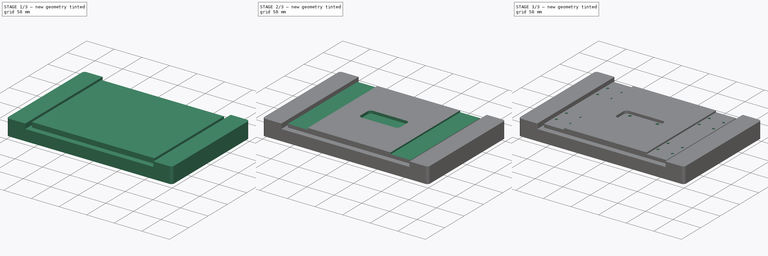
[diagram: build sequence overview — one tinted view per stage of 3, left to right]
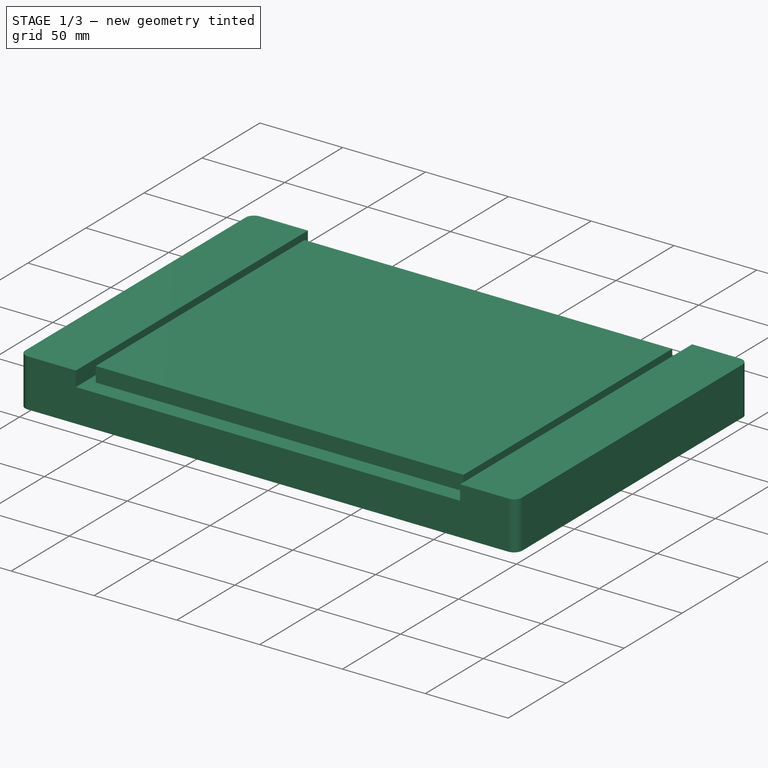
[diagram: stage 1 of 3 — iso view after this stage's code; geometry added in this stage tinted green]
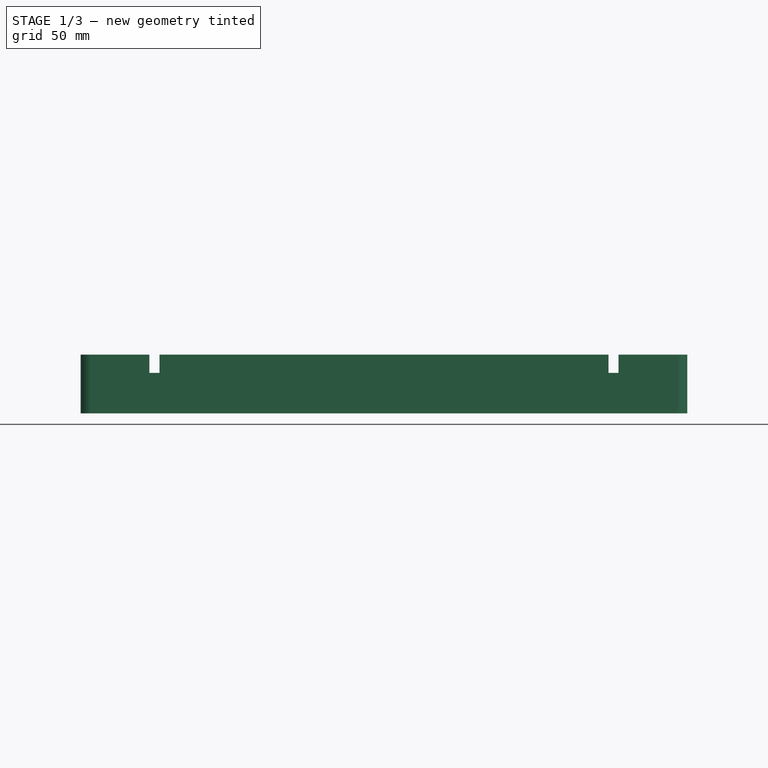
[diagram: stage 1 of 3 — front view after this stage's code; geometry added in this stage tinted green]
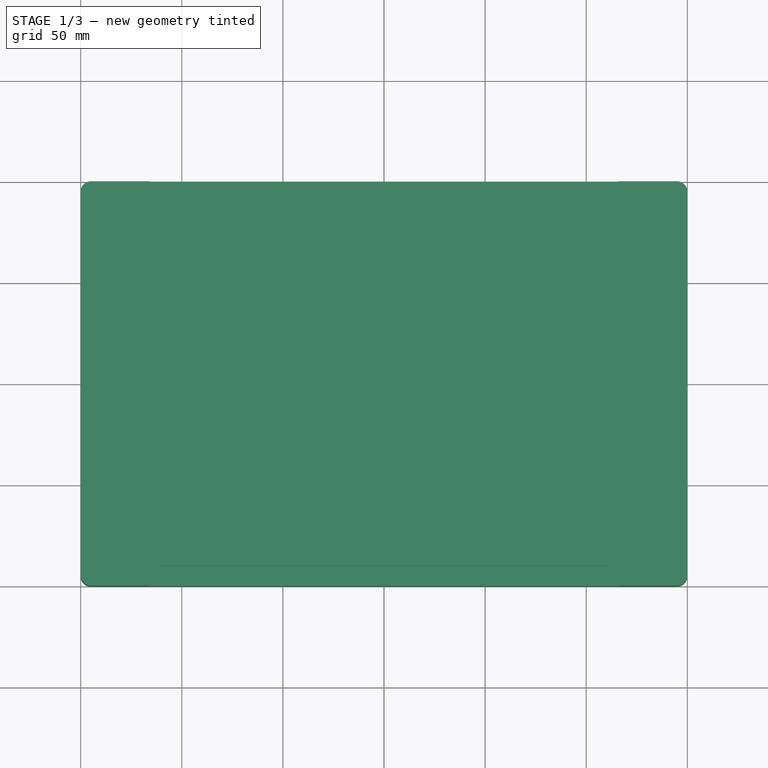
[diagram: stage 1 of 3 — top view after this stage's code; geometry added in this stage tinted green]
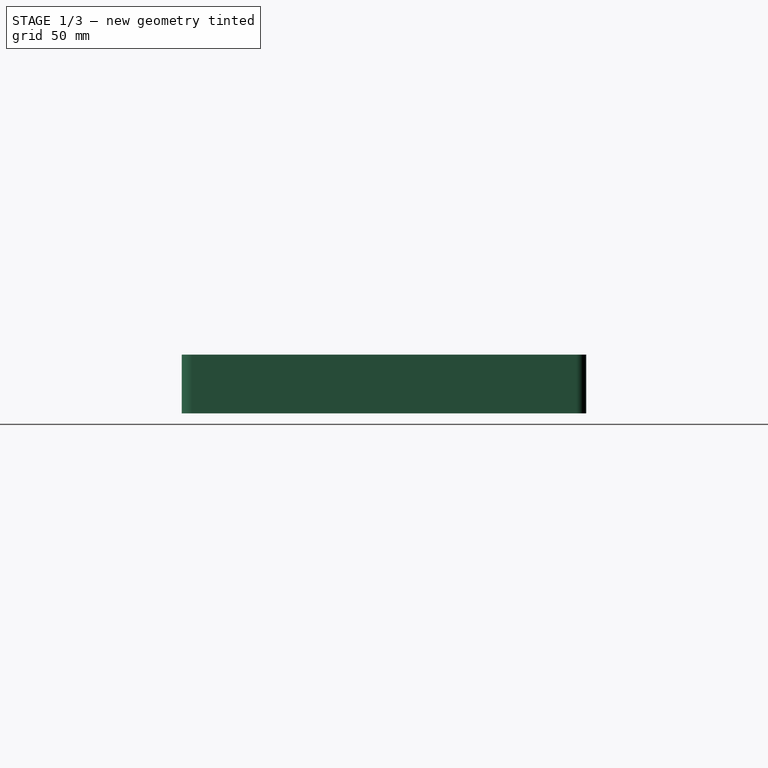
[diagram: stage 1 of 3 — right view after this stage's code; geometry added in this stage tinted green]
FCSTD DOCUMENT  (FreeCAD 0.20R30972 (Git))
Label: Стол
License: All rights reserved
LicenseURL: http://en.wikipedia.org/wiki/All_rights_reserved
objects: Sketcher::SketchObject×7, PartDesign::Pocket×3, PartDesign::Pad×2, PartDesign::Hole×2, Part::Feature×1, PartDesign::Fillet×1, PartDesign::Body×1
note: 33 computed .brp shape members not serialized (recipe doc carries the construction recipe); baked Part::Feature solids carry a one-line shape summary decoded from their .brp
EXTERNAL_REF file=../Станина/ТаблицаПараметров.FCStd obj=Spreadsheet010

FEATURE [Part::Feature] Solid  label="стол"
  Placement = pos=(-150,-100,0) rot=(0,0,1;0rad)
  TreeRank = 158
  shape: bbox 300 x 200 x 29 mm, 426 faces (baked)
FEATURE [Sketcher::SketchObject] Sketch
  FullyConstrained = true
  MapMode = 5
  Support = -> [XY_Plane]
  TreeRank = 169
  expr: Constraints[5] = <<ТаблицаПараметров>>#<<Стол>>.StolDovjuna
  expr: Constraints[6] = <<ТаблицаПараметров>>#<<Стол>>.StolShirina
  sketch-geometry (12):
    g0: LineSegment StartX=-145 StartY=100 StartZ=0 EndX=145 EndY=100 EndZ=0
    g1: LineSegment StartX=150 StartY=95 StartZ=0 EndX=150 EndY=-95 EndZ=0
    g2: LineSegment StartX=145 StartY=-100 StartZ=0 EndX=-145 EndY=-100 EndZ=0
    g3: LineSegment StartX=-150 StartY=-95 StartZ=0 EndX=-150 EndY=95 EndZ=0
    g4: ArcOfCircle CenterX=-145 CenterY=95 CenterZ=0 NormalX=0 NormalY=0 NormalZ=1 AngleXU=0 Radius=5 StartAngle=1.5708 EndAngle=3.14159
    g5: GeomPoint [constr] X=-150 Y=100 Z=0
    g6: ArcOfCircle CenterX=-145 CenterY=-95 CenterZ=0 NormalX=0 NormalY=0 NormalZ=1 AngleXU=0 Radius=5 StartAngle=3.14159 EndAngle=4.71239
    g7: GeomPoint [constr] X=-150 Y=-100 Z=0
    g8: ArcOfCircle CenterX=145 CenterY=-95 CenterZ=0 NormalX=0 NormalY=0 NormalZ=1 AngleXU=0 Radius=5 StartAngle=4.71239 EndAngle=6.28319
    g9: GeomPoint [constr] X=150 Y=-100 Z=0
    g10: ArcOfCircle CenterX=145 CenterY=95 CenterZ=0 NormalX=0 NormalY=0 NormalZ=1 AngleXU=0 Radius=5 StartAngle=9e-16 EndAngle=1.5708
    g11: GeomPoint [constr] X=150 Y=100 Z=0
  constraints (27):
    c: Horizontal(g0)
    c: Horizontal(g2)
    c: Vertical(g1)
    c: Vertical(g3)
    c: Symmetric(g5,g9,g-1)
    c: DistanceY(g7,g5) = 200
    c: DistanceX(g5,g11) = 300
    c: PointOnObject(g5,g3)
    c: PointOnObject(g5,g0)
    c: Tangent(g3,g4) = 1.5708
    c: Tangent(g0,g4) = 1.5708
    c: PointOnObject(g7,g3)
    c: PointOnObject(g7,g2)
    c: Tangent(g3,g6) = 1.5708
    c: Tangent(g2,g6) = 1.5708
    c: PointOnObject(g9,g2)
    c: PointOnObject(g9,g1)
    c: Tangent(g2,g8) = 1.5708
    c: Tangent(g1,g8) = 1.5708
    c: PointOnObject(g11,g0)
    c: PointOnObject(g11,g1)
    c: Tangent(g0,g10) = 1.5708
    c: Tangent(g1,g10) = 1.5708
    c: Equal(g4,g6)
    c: Equal(g4,g8)
    c: Equal(g4,g10)
    c: Radius(g4) = 5
FEATURE [PartDesign::Pad] Pad
  AddSubType = 0
  AlongSketchNormal = false
  CheckUpToFaceLimits = true
  ClaimChildren = false
  Direction = (0,0,1)
  Fit = 0
  FitJoin = 0
  InnerFit = 0
  InnerFitJoin = 0
  InnerTaperAngle = 0
  InnerTaperAngleRev = 0
  Length = 29
  Length2 = 100
  Linearize = true
  NewSolid = false
  Profile = -> Sketch
  Suppress = false
  TreeRank = 170
  Type = 0
  _ProfileBasedVersion = 1
  expr: Length = <<ТаблицаПараметров>>#<<Стол>>.StolVusota
FEATURE [Sketcher::SketchObject] Sketch001
  FullyConstrained = true
  MapMode = 5
  Placement = pos=(0,0,29) rot=(0,0,1;0rad)
  Support = -> [Pad]
  TreeRank = 171
  expr: Constraints[10] = <<ТаблицаПараметров>>#<<Стол>>.StolPazShuruna
  expr: Constraints[9] = <<ТаблицаПараметров>>#<<Стол>>.StolDovjuna
  sketch-geometry (4):
    g0: LineSegment StartX=-116 StartY=100 StartZ=0 EndX=116 EndY=100 EndZ=0
    g1: LineSegment StartX=116 StartY=100 StartZ=0 EndX=116 EndY=-100 EndZ=0
    g2: LineSegment StartX=116 StartY=-100 StartZ=0 EndX=-116 EndY=-100 EndZ=0
    g3: LineSegment StartX=-116 StartY=-100 StartZ=0 EndX=-116 EndY=100 EndZ=0
  constraints (11):
    c: Coincident(g0,g1)
    c: Coincident(g1,g2)
    c: Coincident(g2,g3)
    c: Coincident(g3,g0)
    c: Horizontal(g0)
    c: Horizontal(g2)
    c: Vertical(g1)
    c: Vertical(g3)
    c: Symmetric(g1,g0,g-1)
    c: DistanceY(g3,g3) = 200
    c: DistanceX(g0,g0) = 232
FEATURE [PartDesign::Pocket] Pocket
  AddSubType = 1
  BaseFeature = -> Pad
  CheckUpToFaceLimits = true
  ClaimChildren = false
  Fit = 0
  FitJoin = 0
  InnerFit = 0
  InnerFitJoin = 0
  InnerTaperAngle = 0
  InnerTaperAngleRev = 0
  Length = 9
  Length2 = 100
  Linearize = true
  NewSolid = false
  Profile = -> Sketch001
  Suppress = false
  TreeRank = 172
  Type = 0
  _ProfileBasedVersion = 1
  _Version = 1
  expr: Length = <<ТаблицаПараметров>>#<<Стол>>.StolPazZahust
FEATURE [Sketcher::SketchObject] Sketch002
  FullyConstrained = true
  MapMode = 5
  Placement = pos=(0,0,20) rot=(0,0,1;0rad)
  Support = -> [Pocket]
  TreeRank = 173
  expr: Constraints[10] = <<ТаблицаПараметров>>#<<Стол>>.StolKaretkaDovjuna
  expr: Constraints[9] = <<ТаблицаПараметров>>#<<Стол>>.StolKaretkuShurina
  sketch-geometry (4):
    g0: LineSegment StartX=-111 StartY=90 StartZ=0 EndX=111 EndY=90 EndZ=0
    g1: LineSegment StartX=111 StartY=90 StartZ=0 EndX=111 EndY=-90 EndZ=0
    g2: LineSegment StartX=111 StartY=-90 StartZ=0 EndX=-111 EndY=-90 EndZ=0
    g3: LineSegment StartX=-111 StartY=-90 StartZ=0 EndX=-111 EndY=90 EndZ=0
  constraints (11):
    c: Coincident(g0,g1)
    c: Coincident(g1,g2)
    c: Coincident(g2,g3)
    c: Coincident(g3,g0)
    c: Horizontal(g0)
    c: Horizontal(g2)
    c: Vertical(g1)
    c: Vertical(g3)
    c: Symmetric(g0,g1,g-1)
    c: DistanceX(g0,g0) = 222
    c: DistanceY(g3,g3) = 180
FEATURE [PartDesign::Pad] Pad001
  AddSubType = 0
  AlongSketchNormal = false
  BaseFeature = -> Pocket
  CheckUpToFaceLimits = true
  ClaimChildren = false
  Direction = (0,0,1)
  Fit = 0
  FitJoin = 0
  InnerFit = 0
  InnerFitJoin = 0
  InnerTaperAngle = 0
  InnerTaperAngleRev = 0
  Length = 9
  Length2 = 100
  Linearize = true
  NewSolid = false
  Profile = -> Sketch002
  Suppress = false
  TreeRank = 174
  Type = 0
  _ProfileBasedVersion = 1
  expr: Length = <<ТаблицаПараметров>>#<<Стол>>.StolPazZahust
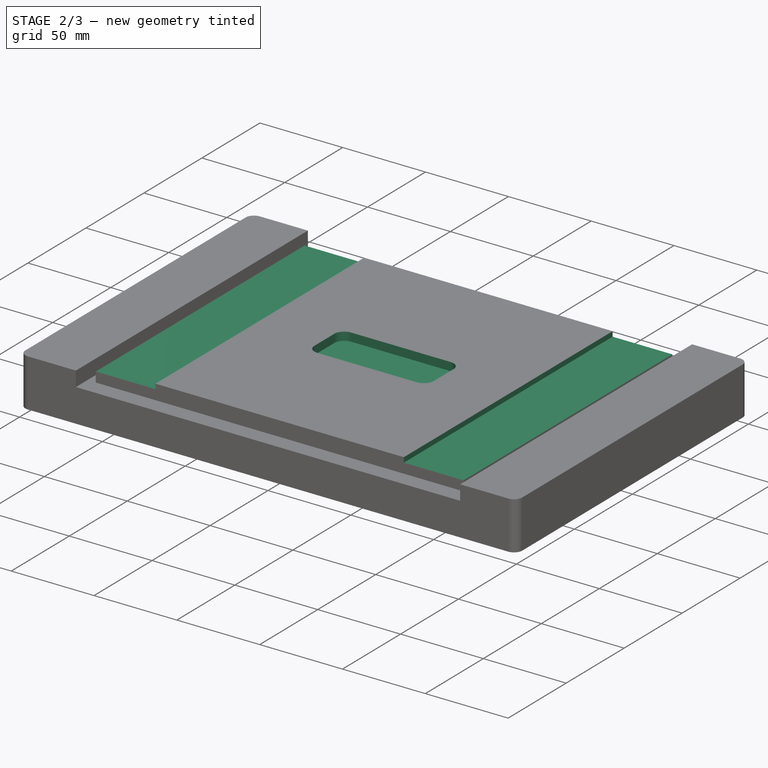
[diagram: stage 2 of 3 — iso view after this stage's code; geometry added in this stage tinted green]
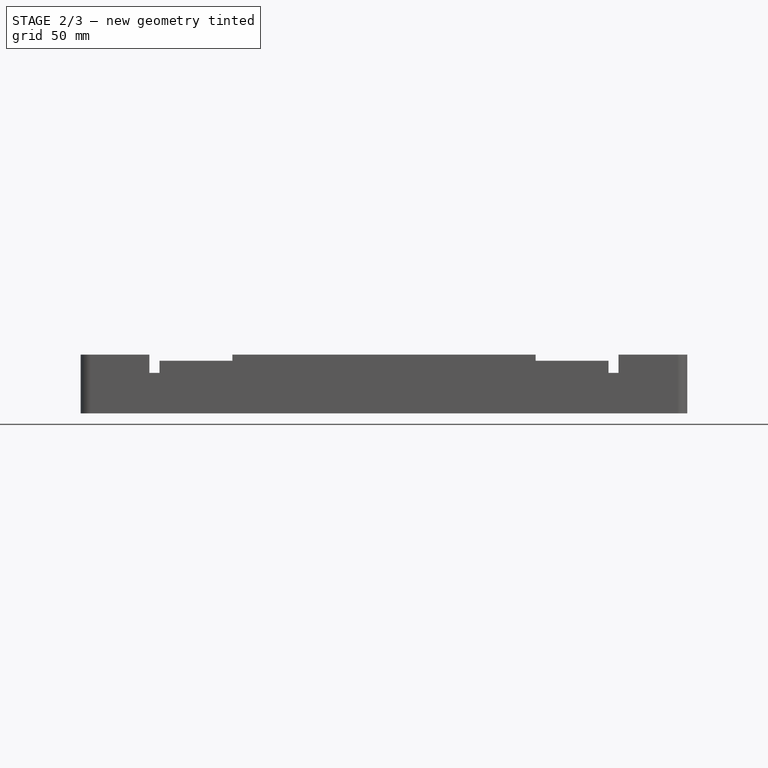
[diagram: stage 2 of 3 — front view after this stage's code; geometry added in this stage tinted green]
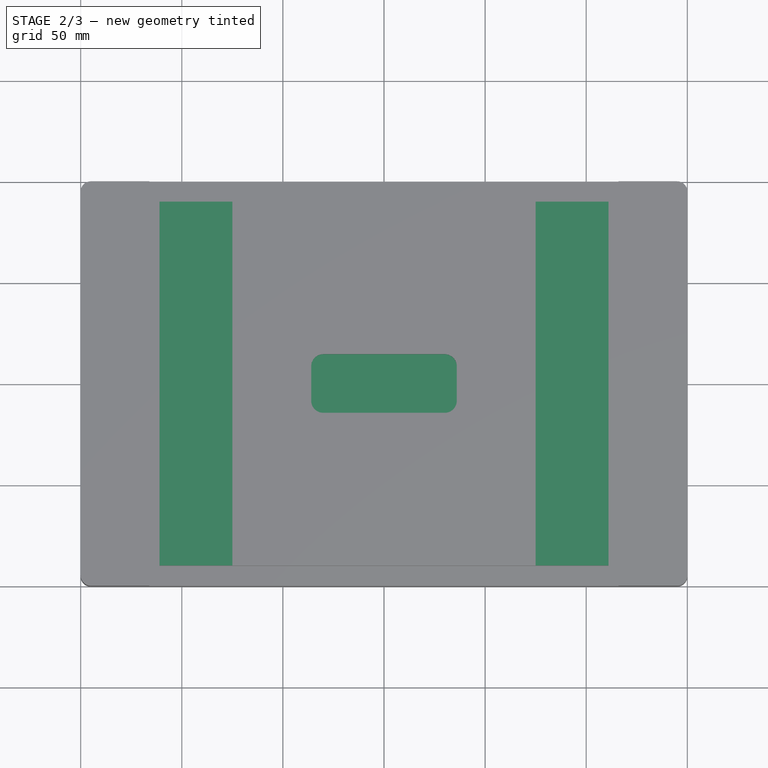
[diagram: stage 2 of 3 — top view after this stage's code; geometry added in this stage tinted green]
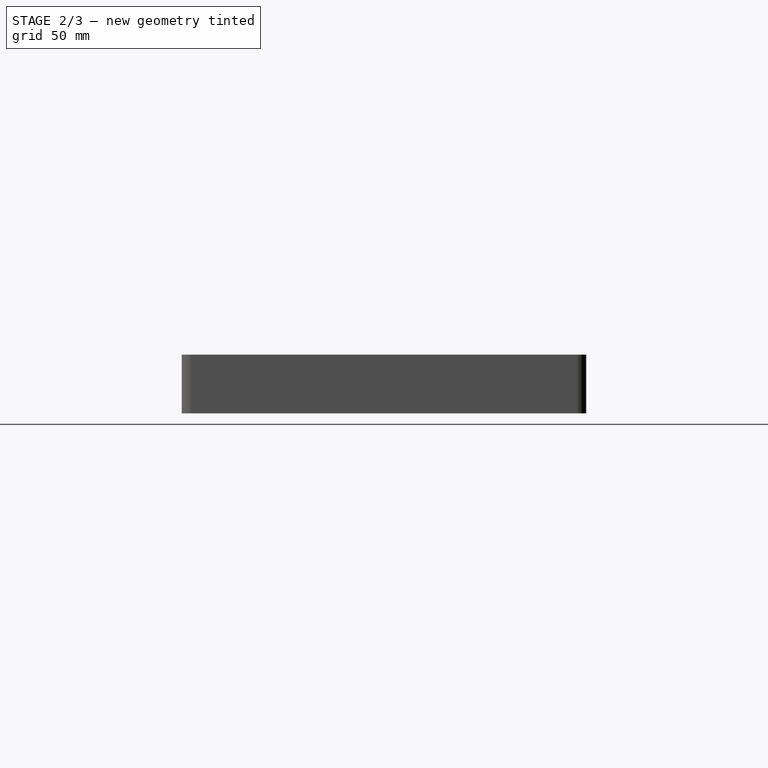
[diagram: stage 2 of 3 — right view after this stage's code; geometry added in this stage tinted green]
FEATURE [Sketcher::SketchObject] Sketch003
  FullyConstrained = true
  MapMode = 5
  Placement = pos=(0,0,29) rot=(0,0,1;0rad)
  Support = -> [Pad001]
  TreeRank = 175
  expr: Constraints[18] = <<ТаблицаПараметров>>#<<Стол>>.StolKaretkaDovjuna
  expr: Constraints[19] = <<ТаблицаПараметров>>#<<Стол>>.StolKaretkuShurina
  expr: Constraints[20] = <<ТаблицаПараметров>>#<<Стол>>.KaretkaShirina
  sketch-geometry (8):
    g0: LineSegment StartX=-111 StartY=-90 StartZ=0 EndX=-75 EndY=-90 EndZ=0
    g1: LineSegment StartX=-75 StartY=-90 StartZ=0 EndX=-75 EndY=90 EndZ=0
    g2: LineSegment StartX=-75 StartY=90 StartZ=0 EndX=-111 EndY=90 EndZ=0
    g3: LineSegment StartX=-111 StartY=90 StartZ=0 EndX=-111 EndY=-90 EndZ=0
    g4: LineSegment StartX=111 StartY=-90 StartZ=0 EndX=75 EndY=-90 EndZ=0
    g5: LineSegment StartX=75 StartY=-90 StartZ=0 EndX=75 EndY=90 EndZ=0
    g6: LineSegment StartX=75 StartY=90 StartZ=0 EndX=111 EndY=90 EndZ=0
    g7: LineSegment StartX=111 StartY=90 StartZ=0 EndX=111 EndY=-90 EndZ=0
  constraints (23):
    c: Coincident(g0,g1)
    c: Coincident(g1,g2)
    c: Coincident(g2,g3)
    c: Coincident(g3,g0)
    c: Horizontal(g0)
    c: Horizontal(g2)
    c: Vertical(g1)
    c: Vertical(g3)
    c: Coincident(g4,g5)
    c: Coincident(g5,g6)
    c: Coincident(g6,g7)
    c: Coincident(g7,g4)
    c: Horizontal(g4)
    c: Horizontal(g6)
    c: Vertical(g5)
    c: Vertical(g7)
    c: Symmetric(g6,g0,g-1)
    c: Equal(g2,g6)
    c: DistanceY(g3,g3) = 180
    c: DistanceX(g2,g6) = 222
    c: DistanceX(g6,g6) = 36
    c: Equal(g7,g3)
    c: Horizontal(g2,g6)
FEATURE [PartDesign::Pocket] Pocket001
  AddSubType = 1
  BaseFeature = -> Pad001
  CheckUpToFaceLimits = true
  ClaimChildren = false
  Fit = 0
  FitJoin = 0
  InnerFit = 0
  InnerFitJoin = 0
  InnerTaperAngle = 0
  InnerTaperAngleRev = 0
  Length = 3
  Length2 = 100
  Linearize = true
  NewSolid = false
  Profile = -> Sketch003
  Suppress = false
  TreeRank = 176
  Type = 0
  _ProfileBasedVersion = 1
  _Version = 1
  expr: Length = <<ТаблицаПараметров>>#<<Стол>>.KaretkaPaz
FEATURE [Sketcher::SketchObject] Sketch004
  FullyConstrained = true
  MapMode = 5
  Placement = pos=(0,0,29) rot=(0,0,1;0rad)
  Support = -> [Pocket001]
  TreeRank = 177
  expr: Constraints[5] = <<ТаблицаПараметров>>#<<Стол>>.OporaShiruna
  expr: Constraints[6] = <<ТаблицаПараметров>>#<<Стол>>.OporaDovjuna
  sketch-geometry (12):
    g0: LineSegment StartX=-30 StartY=14.5 StartZ=0 EndX=30 EndY=14.5 EndZ=0
    g1: LineSegment StartX=36 StartY=8.5 StartZ=0 EndX=36 EndY=-8.5 EndZ=0
    g2: LineSegment StartX=30 StartY=-14.5 StartZ=0 EndX=-30 EndY=-14.5 EndZ=0
    g3: LineSegment StartX=-36 StartY=-8.5 StartZ=0 EndX=-36 EndY=8.5 EndZ=0
    g4: ArcOfCircle CenterX=-30 CenterY=8.5 CenterZ=0 NormalX=0 NormalY=0 NormalZ=1 AngleXU=0 Radius=6 StartAngle=1.5708 EndAngle=3.14159
    g5: GeomPoint [constr] X=-36 Y=14.5 Z=0
    g6: ArcOfCircle CenterX=-30 CenterY=-8.5 CenterZ=0 NormalX=0 NormalY=0 NormalZ=1 AngleXU=0 Radius=6 StartAngle=3.14159 EndAngle=4.71239
    g7: GeomPoint [constr] X=-36 Y=-14.5 Z=0
    g8: ArcOfCircle CenterX=30 CenterY=-8.5 CenterZ=0 NormalX=0 NormalY=0 NormalZ=1 AngleXU=0 Radius=6 StartAngle=4.71239 EndAngle=6.28319
    g9: GeomPoint [constr] X=36 Y=-14.5 Z=0
    g10: ArcOfCircle CenterX=30 CenterY=8.5 CenterZ=0 NormalX=0 NormalY=0 NormalZ=1 AngleXU=0 Radius=6 StartAngle=0 EndAngle=1.5708
    g11: GeomPoint [constr] X=36 Y=14.5 Z=0
  constraints (27):
    c: Horizontal(g0)
    c: Horizontal(g2)
    c: Vertical(g1)
    c: Vertical(g3)
    c: Symmetric(g11,g7,g-1)
    c: DistanceX(g5,g11) = 72
    c: DistanceY(g7,g5) = 29
    c: PointOnObject(g5,g3)
    c: PointOnObject(g5,g0)
    c: Tangent(g3,g4) = 1.5708
    c: Tangent(g0,g4) = 1.5708
    c: PointOnObject(g7,g3)
    c: PointOnObject(g7,g2)
    c: Tangent(g3,g6) = 1.5708
    c: Tangent(g2,g6) = 1.5708
    c: PointOnObject(g9,g2)
    c: PointOnObject(g9,g1)
    c: Tangent(g2,g8) = 1.5708
    c: Tangent(g1,g8) = 1.5708
    c: PointOnObject(g11,g0)
    c: PointOnObject(g11,g1)
    c: Tangent(g0,g10) = 1.5708
    c: Tangent(g1,g10) = 1.5708
    c: Equal(g4,g6)
    c: Equal(g4,g8)
    c: Equal(g4,g10)
    c: Radius(g4) = 6
FEATURE [PartDesign::Pocket] Pocket002
  AddSubType = 1
  BaseFeature = -> Pocket001
  CheckUpToFaceLimits = true
  ClaimChildren = false
  Fit = 0
  FitJoin = 0
  InnerFit = 0
  InnerFitJoin = 0
  InnerTaperAngle = 0
  InnerTaperAngleRev = 0
  Length = 5
  Length2 = 100
  Linearize = true
  NewSolid = false
  Profile = -> Sketch004
  Suppress = false
  TreeRank = 178
  Type = 0
  _ProfileBasedVersion = 1
  _Version = 1
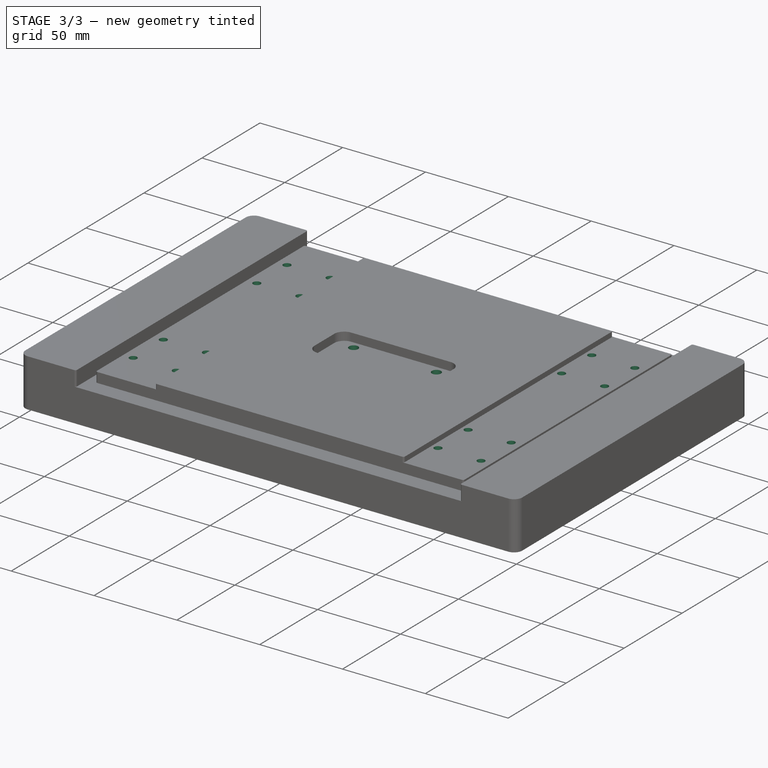
[diagram: stage 3 of 3 — iso view after this stage's code; geometry added in this stage tinted green]
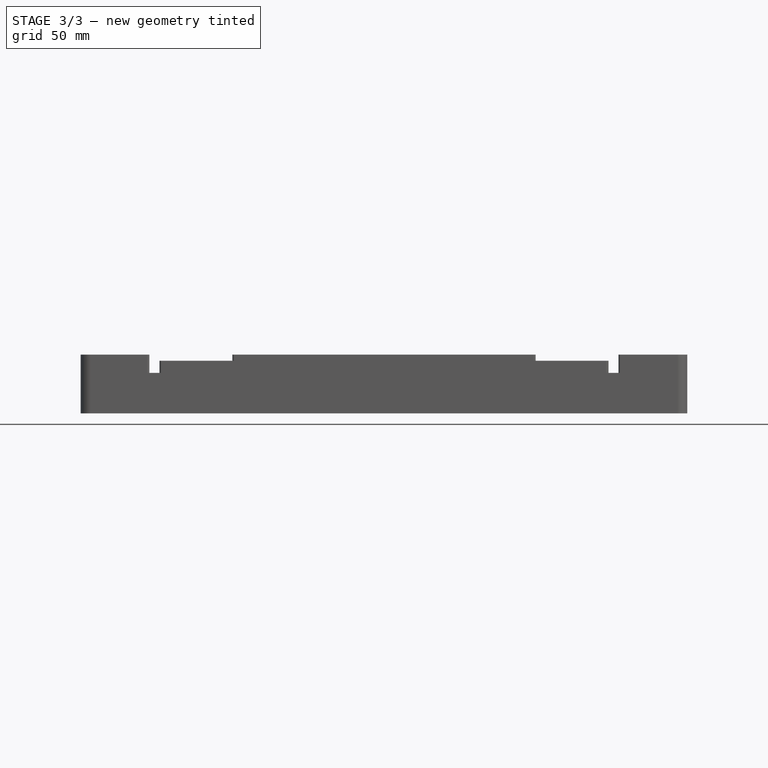
[diagram: stage 3 of 3 — front view after this stage's code; geometry added in this stage tinted green]
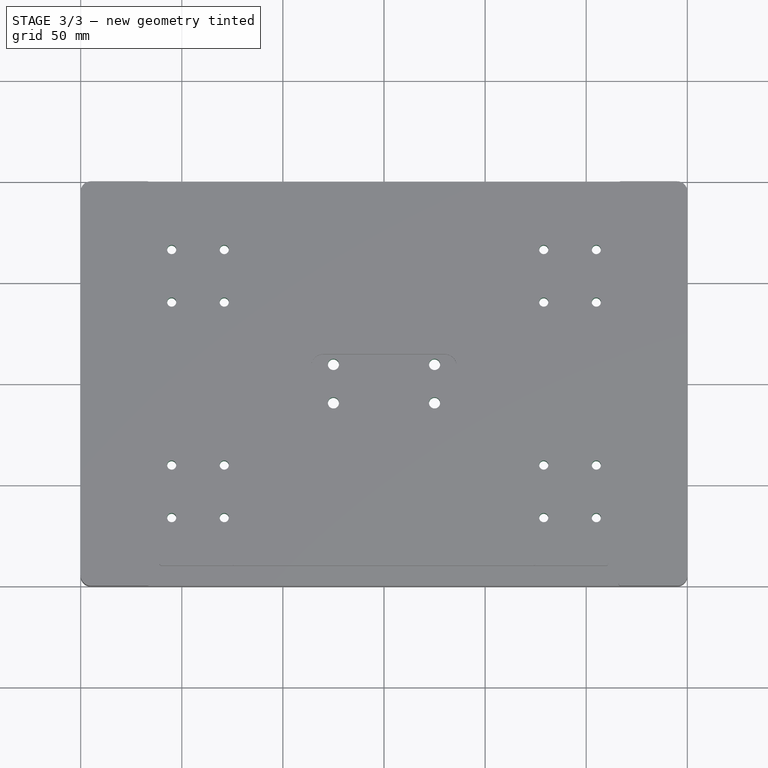
[diagram: stage 3 of 3 — top view after this stage's code; geometry added in this stage tinted green]
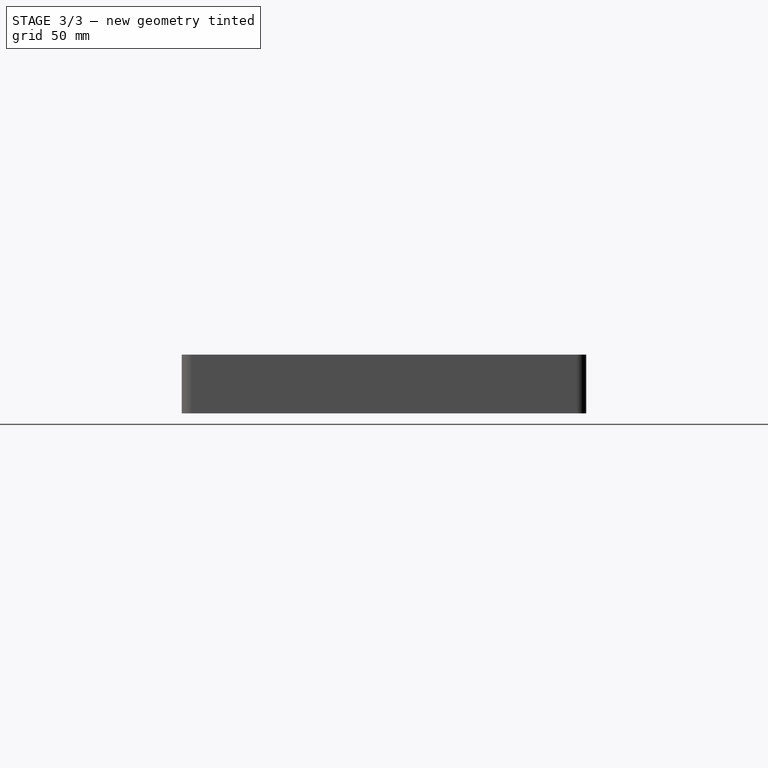
[diagram: stage 3 of 3 — right view after this stage's code; geometry added in this stage tinted green]
FEATURE [PartDesign::Fillet] Fillet
  AddSubType = 0
  Base = -> Pocket002 [Edge28,Edge41,Edge55,Edge53,Edge51,Edge26,Edge47,Edge49,Edge21,Edge43,Edge19,Edge45]
  BaseFeature = -> Pocket002
  NewSolid = false
  Radius = 1
  SupportTransform = false
  Suppress = false
  TreeRank = 179
FEATURE [Sketcher::SketchObject] Sketch005
  FullyConstrained = true
  MapMode = 5
  Placement = pos=(0,0,0) rot=(1,0,0;3.14159rad)
  Support = -> [Fillet]
  TreeRank = 180
  expr: Constraints[9] = -(<<ТаблицаПараметров>>#<<Стол>>.StolKaretkuShurina / 2 - 36 + 4)
  sketch-geometry (16):
    g0: Circle CenterX=-105 CenterY=66.3 CenterZ=0 NormalX=0 NormalY=0 NormalZ=1 AngleXU=0 Radius=1
    g1: Circle CenterX=-79 CenterY=66.3 CenterZ=0 NormalX=0 NormalY=0 NormalZ=1 AngleXU=0 Radius=1
    g2: Circle CenterX=-105 CenterY=40.3 CenterZ=0 NormalX=0 NormalY=0 NormalZ=1 AngleXU=0 Radius=1
    g3: Circle CenterX=-79 CenterY=40.3 CenterZ=0 NormalX=0 NormalY=0 NormalZ=1 AngleXU=0 Radius=1
    g4: Circle CenterX=-105 CenterY=-40.3 CenterZ=0 NormalX=0 NormalY=0 NormalZ=1 AngleXU=0 Radius=1
    g5: Circle CenterX=-79 CenterY=-40.3 CenterZ=0 NormalX=0 NormalY=0 NormalZ=1 AngleXU=0 Radius=1
    g6: Circle CenterX=-105 CenterY=-66.3 CenterZ=0 NormalX=0 NormalY=0 NormalZ=1 AngleXU=0 Radius=1
    g7: Circle CenterX=-79 CenterY=-66.3 CenterZ=0 NormalX=0 NormalY=0 NormalZ=1 AngleXU=0 Radius=1
    g8: Circle CenterX=105 CenterY=66.3 CenterZ=0 NormalX=0 NormalY=0 NormalZ=1 AngleXU=0 Radius=1
    g9: Circle CenterX=79 CenterY=66.3 CenterZ=0 NormalX=0 NormalY=0 NormalZ=1 AngleXU=0 Radius=1
    g10: Circle CenterX=105 CenterY=40.3 CenterZ=0 NormalX=0 NormalY=0 NormalZ=1 AngleXU=0 Radius=1
    g11: Circle CenterX=79 CenterY=40.3 CenterZ=0 NormalX=0 NormalY=0 NormalZ=1 AngleXU=0 Radius=1
    g12: Circle CenterX=105 CenterY=-40.3 CenterZ=0 NormalX=0 NormalY=0 NormalZ=1 AngleXU=0 Radius=1
    g13: Circle CenterX=79 CenterY=-40.3 CenterZ=0 NormalX=0 NormalY=0 NormalZ=1 AngleXU=0 Radius=1
    g14: Circle CenterX=105 CenterY=-66.3 CenterZ=0 NormalX=0 NormalY=0 NormalZ=1 AngleXU=0 Radius=1
    g15: Circle CenterX=79 CenterY=-66.3 CenterZ=0 NormalX=0 NormalY=0 NormalZ=1 AngleXU=0 Radius=1
  constraints (46):
    c: Vertical(g0,g2)
    c: Vertical(g2,g4)
    c: Vertical(g7,g5)
    c: Vertical(g5,g3)
    c: Vertical(g3,g1)
    c: Horizontal(g0,g1)
    c: Horizontal(g2,g3)
    c: Horizontal(g4,g5)
    c: Horizontal(g6,g7)
    c: DistanceX(g1) = -79
    c: DistanceX(g0,g1) = 26
    c: DistanceY(g2,g0) = 26
    c: DistanceY(g6,g4) = 26
    c: Symmetric(g6,g0,g-1)
    c: Equal(g2,g0)
    c: Equal(g2,g1)
    c: Equal(g2,g3)
    c: Equal(g2,g5)
    c: Equal(g2,g4)
    c: Equal(g2,g6)
    c: Equal(g2,g7)
    c: Radius(g2) = 1
    c: DistanceY(g6,g0) = 132.6
    c: Equal(g10,g8)
    c: Equal(g10,g9)
    c: Equal(g10,g11)
    c: Equal(g10,g13)
    c: Equal(g10,g12)
    c: Equal(g10,g14)
    c: Equal(g10,g15)
    c: Radius(g10) = 1
    c: Symmetric(g1,g9,g-2)
    c: DistanceX(g9,g8) = 26
    c: DistanceY(g11,g9) = 26
    c: DistanceY(g15,g13) = 26
    c: DistanceX(g13,g12) = 26
    c: Vertical(g13,g15)
    c: Vertical(g15,g11)
    c: Vertical(g11,g9)
    c: Vertical(g8,g10)
    c: Vertical(g12,g14)
    c: Horizontal(g15,g14)
    c: Horizontal(g14,g7)
    c: Horizontal(g13,g12)
    c: Horizontal(g11,g10)
    c: Horizontal(g9,g8)
FEATURE [PartDesign::Hole] Hole
  AddSubType = 1
  BaseFeature = -> Fillet
  ClaimChildren = false
  CustomThreadClearance = 0
  Depth = 26
  DepthType = 0
  Diameter = 4.5
  DrillForDepth = false
  DrillPoint = 1
  DrillPointAngle = 118
  Fit = 0
  FitJoin = 0
  HoleCutCountersinkAngle = 90
  HoleCutCustomValues = false
  HoleCutDepth = 4.4
  HoleCutDiameter = 8
  HoleCutType = 13
  InnerFit = 0
  InnerFitJoin = 0
  Linearize = true
  ModelThread = false
  NewSolid = false
  Profile = -> Sketch005
  Suppress = false
  Tapered = false
  TaperedAngle = 90
  ThreadClass = 0
  ThreadDepth = 26
  ThreadDepthType = 0
  ThreadDirection = 0
  ThreadFit = 0
  ThreadSize = 11
  ThreadType = 1
  Threaded = false
  TreeRank = 181
  UseCustomThreadClearance = false
  _ProfileBasedVersion = 1
FEATURE [Sketcher::SketchObject] Sketch006
  FullyConstrained = true
  MapMode = 5
  Placement = pos=(0,0,0) rot=(1,0,0;3.14159rad)
  Support = -> [Hole]
  TreeRank = 182
  sketch-geometry (13):
    g0: LineSegment [constr] StartX=-25 StartY=-9.5 StartZ=0 EndX=-25 EndY=9.5 EndZ=0
    g1: LineSegment [constr] StartX=-25 StartY=9.5 StartZ=0 EndX=25 EndY=9.5 EndZ=0
    g2: LineSegment [constr] StartX=25 StartY=9.5 StartZ=0 EndX=25 EndY=-9.5 EndZ=0
    g3: LineSegment [constr] StartX=25 StartY=-9.5 StartZ=0 EndX=-25 EndY=-9.5 EndZ=0
    g4: GeomPoint [constr] X=0 Y=0 Z=0
    g5: GeomPoint [constr] X=-25 Y=9.5 Z=0
    g6: GeomPoint [constr] X=-25 Y=-9.5 Z=0
    g7: GeomPoint [constr] X=25 Y=9.5 Z=0
    g8: GeomPoint [constr] X=25 Y=-9.5 Z=0
    g9: Circle CenterX=-25 CenterY=9.5 CenterZ=0 NormalX=0 NormalY=0 NormalZ=1 AngleXU=0 Radius=1
    g10: Circle CenterX=-25 CenterY=-9.5 CenterZ=0 NormalX=0 NormalY=0 NormalZ=1 AngleXU=0 Radius=1
    g11: Circle CenterX=25 CenterY=-9.5 CenterZ=0 NormalX=0 NormalY=0 NormalZ=1 AngleXU=0 Radius=1
    g12: Circle CenterX=25 CenterY=9.5 CenterZ=0 NormalX=0 NormalY=0 NormalZ=1 AngleXU=0 Radius=1
  constraints (24):
    c: Coincident(g0,g1)
    c: Coincident(g1,g2)
    c: Coincident(g3,g0)
    c: Horizontal(g1)
    c: Horizontal(g3)
    c: Vertical(g0)
    c: Vertical(g2)
    c: Symmetric(g1,g0,g4)
    c: Coincident(g4,g-1)
    c: DistanceX(g1,g1) = 50
    c: DistanceY(g0,g0) = 19
    c: Coincident(g9,g0)
    c: Coincident(g10,g0)
    c: Coincident(g11,g2)
    c: Coincident(g12,g1)
    c: Equal(g9,g10)
    c: Equal(g9,g11)
    c: Equal(g9,g12)
    c: Radius(g9) = 1
    c: Coincident(g0,g5)
    c: Coincident(g1,g7)
    c: Coincident(g2,g3)
    c: Coincident(g2,g8)
    c: Coincident(g0,g6)
FEATURE [PartDesign::Hole] Hole001
  AddSubType = 1
  BaseFeature = -> Hole
  ClaimChildren = false
  CustomThreadClearance = 0
  Depth = 29
  DepthType = 0
  Diameter = 5.5
  DrillForDepth = false
  DrillPoint = 1
  DrillPointAngle = 118
  Fit = 0
  FitJoin = 0
  HoleCutCountersinkAngle = 90
  HoleCutCustomValues = false
  HoleCutDepth = 5.4
  HoleCutDiameter = 10
  HoleCutType = 13
  InnerFit = 0
  InnerFitJoin = 0
  Linearize = true
  ModelThread = false
  NewSolid = false
  Profile = -> Sketch006
  Suppress = false
  Tapered = false
  TaperedAngle = 90
  ThreadClass = 0
  ThreadDepth = 29
  ThreadDepthType = 0
  ThreadDirection = 0
  ThreadFit = 0
  ThreadSize = 13
  ThreadType = 1
  Threaded = false
  TreeRank = 183
  UseCustomThreadClearance = false
  _ProfileBasedVersion = 1
FEATURE [PartDesign::Body] Body
  AutoGroupSolids = false
  ClaimAllChildren = false
  ExportMode = 0
  Group = -> [Sketch,Pad,Sketch001,Pocket,Sketch002,Pad001,Sketch003,Pocket001,Sketch004,Pocket002,Fillet,Sketch005,Hole,Sketch006,Hole001]
  Origin = -> Origin
  Tip = -> Hole001
  TreeRank = 168
  _ExportChildren = -> [Pad,Pocket,Pad001,Pocket001,Pocket002,Fillet,Hole,Hole001]
  _GroupVersion = 1
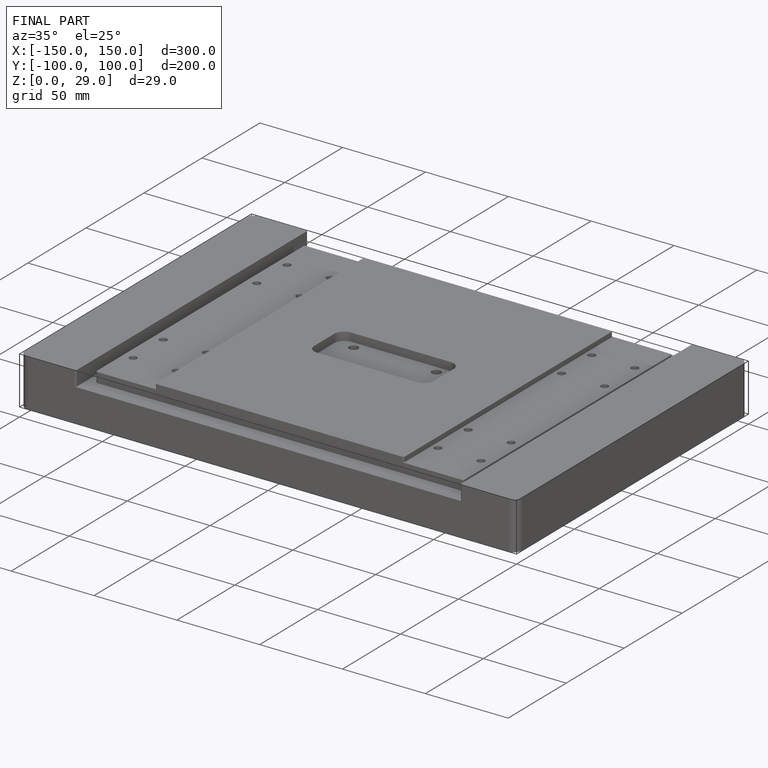
[diagram: finished part — iso view with bounding-box wireframe]
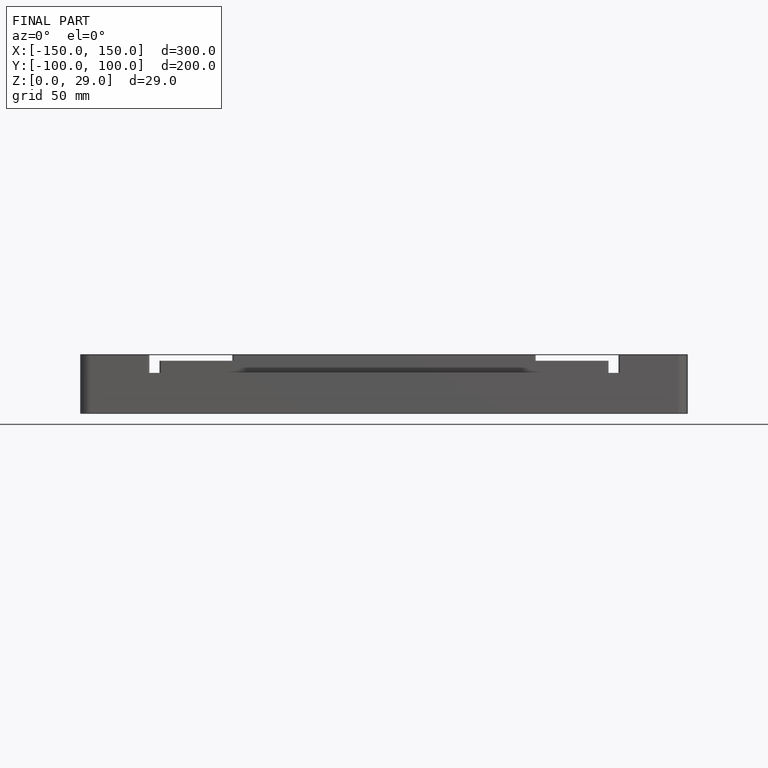
[diagram: finished part — front view with bounding-box wireframe]
